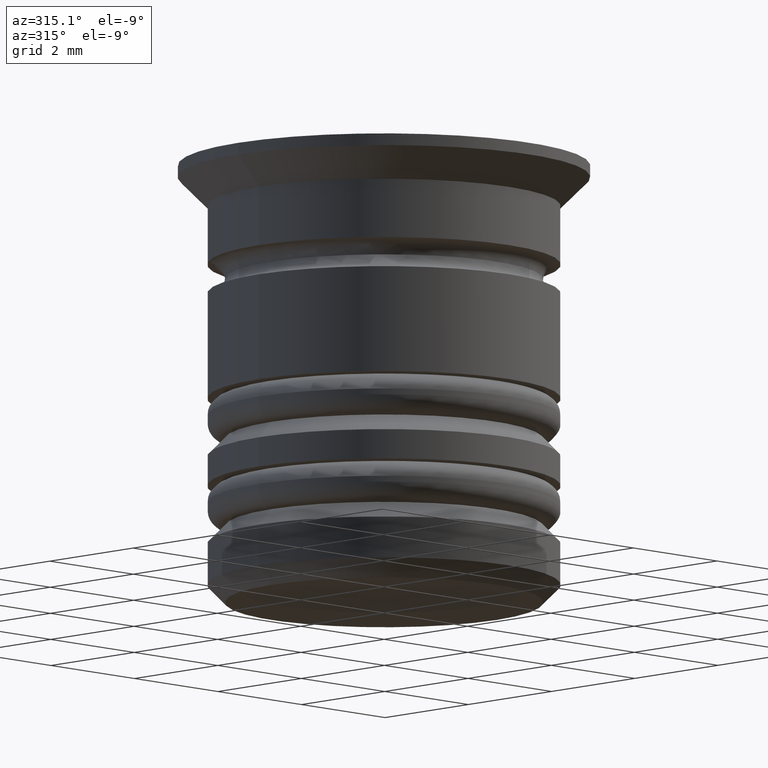
[diagram: clean part render]
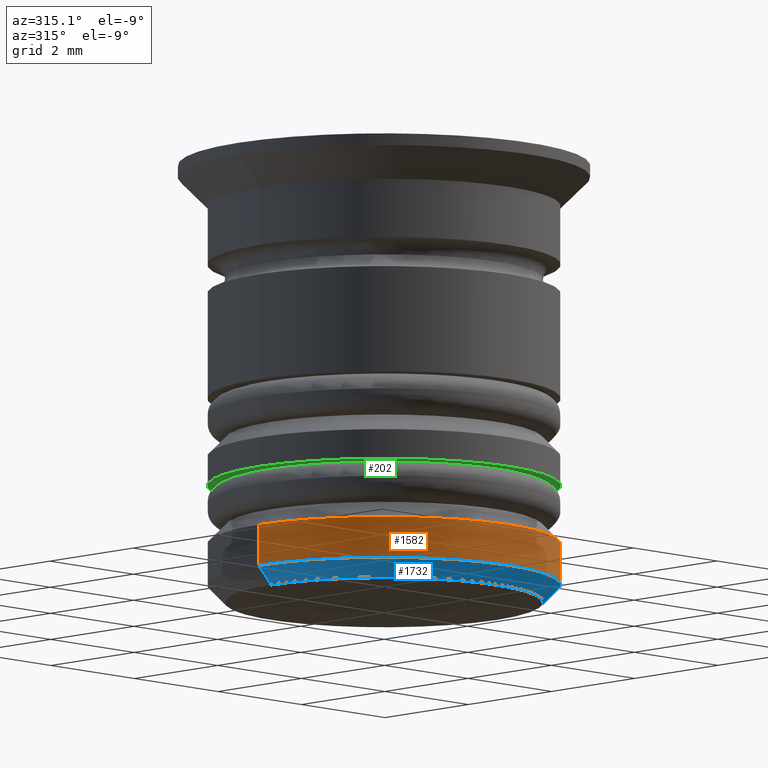
[diagram: same view with three faces highlighted in distinct colors, each labeled with its STEP entity id]
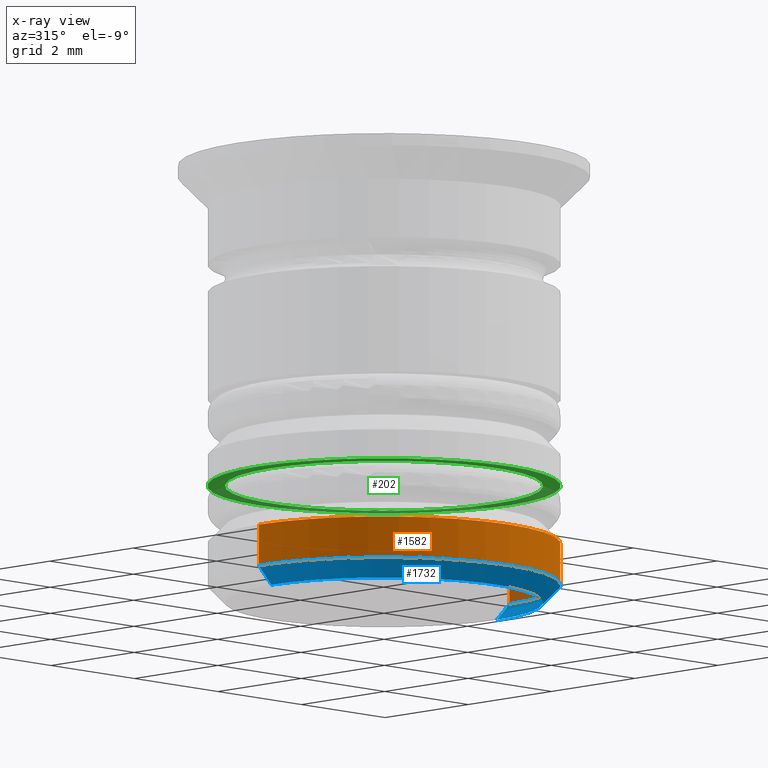
[diagram: x-ray of the same camera — body ghosted, the three highlighted faces saturated]
A machine part, auxiliary view with three faces highlighted in distinct colors.
The next image is the same camera in x-ray (body ghosted, the three faces saturated) — at least one of them is partly hidden behind the body in this view.
Their STEP definitions:

[orange] entity #1582 — the highlighted cylindrical surface (partial cylindrical patch) has radius 3 mm, axis along (-0, -0, 1).
#94 = VERTEX_POINT ( 'NONE', #185 ) ;
#110 = DIRECTION ( 'NONE',  ( -0.000000000000000000, -0.000000000000000000, 1.000000000000000000 ) ) ;
#119 = CIRCLE ( 'NONE', #1657, 3.000000000000000888 ) ;
#162 = EDGE_CURVE ( 'NONE', #653, #94, #843, .T. ) ;
#185 = CARTESIAN_POINT ( 'NONE',  ( 3.000000000000000888, 0.000000000000000000, -7.200000000000000178 ) ) ;
#319 = LINE ( 'NONE', #763, #1628 ) ;
#320 = DIRECTION ( 'NONE',  ( -1.000000000000000000, 0.000000000000000000, 0.000000000000000000 ) ) ;
#411 = DIRECTION ( 'NONE',  ( 1.000000000000000000, 0.000000000000000000, 0.000000000000000000 ) ) ;
#431 = VERTEX_POINT ( 'NONE', #1818 ) ;
#464 = DIRECTION ( 'NONE',  ( -0.000000000000000000, -0.000000000000000000, 1.000000000000000000 ) ) ;
#491 = EDGE_CURVE ( 'NONE', #94, #431, #319, .T. ) ;
#547 = ORIENTED_EDGE ( 'NONE', *, *, #1804, .F. ) ;
#595 = EDGE_LOOP ( 'NONE', ( #547, #1477, #1161, #1635 ) ) ;
#618 = DIRECTION ( 'NONE',  ( -1.000000000000000000, 0.000000000000000000, 0.000000000000000000 ) ) ;
#631 = CARTESIAN_POINT ( 'NONE',  ( 0.000000000000000000, 0.000000000000000000, -6.500000000000004441 ) ) ;
#653 = VERTEX_POINT ( 'NONE', #1637 ) ;
#758 = AXIS2_PLACEMENT_3D ( 'NONE', #1416, #1137, #411 ) ;
#763 = CARTESIAN_POINT ( 'NONE',  ( 3.000000000000000888, 0.000000000000000000, 0.000000000000000000 ) ) ;
#833 = VERTEX_POINT ( 'NONE', #897 ) ;
#843 = CIRCLE ( 'NONE', #1315, 3.000000000000000888 ) ;
#897 = CARTESIAN_POINT ( 'NONE',  ( -3.000000000000000888, 3.673940397442060854E-16, -6.500000000000004441 ) ) ;
#1026 = VECTOR ( 'NONE', #110, 1000.000000000000000 ) ;
#1044 = CARTESIAN_POINT ( 'NONE',  ( -3.000000000000000888, 3.673940397442060854E-16, 0.000000000000000000 ) ) ;
#1137 = DIRECTION ( 'NONE',  ( -0.000000000000000000, -0.000000000000000000, 1.000000000000000000 ) ) ;
#1161 = ORIENTED_EDGE ( 'NONE', *, *, #491, .T. ) ;
#1164 = CARTESIAN_POINT ( 'NONE',  ( 0.000000000000000000, 0.000000000000000000, -7.200000000000000178 ) ) ;
#1251 = FACE_OUTER_BOUND ( 'NONE', #595, .T. ) ;
#1306 = EDGE_CURVE ( 'NONE', #431, #833, #119, .T. ) ;
#1315 = AXIS2_PLACEMENT_3D ( 'NONE', #1164, #464, #618 ) ;
#1320 = DIRECTION ( 'NONE',  ( 0.000000000000000000, 0.000000000000000000, -1.000000000000000000 ) ) ;
#1329 = DIRECTION ( 'NONE',  ( -0.000000000000000000, -0.000000000000000000, 1.000000000000000000 ) ) ;
#1335 = LINE ( 'NONE', #1044, #1026 ) ;
#1416 = CARTESIAN_POINT ( 'NONE',  ( 0.000000000000000000, 0.000000000000000000, 0.000000000000000000 ) ) ;
#1477 = ORIENTED_EDGE ( 'NONE', *, *, #162, .T. ) ;
#1563 = CYLINDRICAL_SURFACE ( 'NONE', #758, 3.000000000000000888 ) ;
#1582 = ADVANCED_FACE ( 'NONE', ( #1251 ), #1563, .T. ) ;
#1628 = VECTOR ( 'NONE', #1329, 1000.000000000000000 ) ;
#1635 = ORIENTED_EDGE ( 'NONE', *, *, #1306, .T. ) ;
#1637 = CARTESIAN_POINT ( 'NONE',  ( -3.000000000000000888, 3.673940397442060854E-16, -7.200000000000000178 ) ) ;
#1657 = AXIS2_PLACEMENT_3D ( 'NONE', #631, #1320, #320 ) ;
#1804 = EDGE_CURVE ( 'NONE', #653, #833, #1335, .T. ) ;
#1818 = CARTESIAN_POINT ( 'NONE',  ( 3.000000000000000888, 0.000000000000000000, -6.500000000000004441 ) ) ;

[blue] entity #1732 — the highlighted conical surface has half-angle 45 deg.
#17 = EDGE_CURVE ( 'NONE', #144, #94, #1157, .T. ) ;
#73 = CARTESIAN_POINT ( 'NONE',  ( 2.699999999999999289, 0.000000000000000000, -7.500000000000000000 ) ) ;
#94 = VERTEX_POINT ( 'NONE', #185 ) ;
#144 = VERTEX_POINT ( 'NONE', #73 ) ;
#162 = EDGE_CURVE ( 'NONE', #653, #94, #843, .T. ) ;
#185 = CARTESIAN_POINT ( 'NONE',  ( 3.000000000000000888, 0.000000000000000000, -7.200000000000000178 ) ) ;
#192 = CARTESIAN_POINT ( 'NONE',  ( -3.000000000000000888, 3.673940397442060854E-16, -7.200000000000000178 ) ) ;
#208 = FACE_OUTER_BOUND ( 'NONE', #1589, .T. ) ;
#252 = DIRECTION ( 'NONE',  ( -0.000000000000000000, -0.000000000000000000, 1.000000000000000000 ) ) ;
#287 = DIRECTION ( 'NONE',  ( 0.000000000000000000, 0.000000000000000000, -1.000000000000000000 ) ) ;
#296 = CARTESIAN_POINT ( 'NONE',  ( 0.000000000000000000, 0.000000000000000000, -7.500000000000000000 ) ) ;
#445 = AXIS2_PLACEMENT_3D ( 'NONE', #296, #287, #850 ) ;
#464 = DIRECTION ( 'NONE',  ( -0.000000000000000000, -0.000000000000000000, 1.000000000000000000 ) ) ;
#528 = AXIS2_PLACEMENT_3D ( 'NONE', #1519, #252, #1662 ) ;
#584 = CARTESIAN_POINT ( 'NONE',  ( -2.699999999999999289, 3.490243377569956554E-16, -7.500000000000000000 ) ) ;
#618 = DIRECTION ( 'NONE',  ( -1.000000000000000000, 0.000000000000000000, 0.000000000000000000 ) ) ;
#653 = VERTEX_POINT ( 'NONE', #1637 ) ;
#703 = VECTOR ( 'NONE', #745, 1000.000000000000227 ) ;
#745 = DIRECTION ( 'NONE',  ( -0.7071067811865495711, 8.659560562354957510E-17, 0.7071067811865454633 ) ) ;
#795 = ORIENTED_EDGE ( 'NONE', *, *, #1202, .F. ) ;
#843 = CIRCLE ( 'NONE', #1315, 3.000000000000000888 ) ;
#850 = DIRECTION ( 'NONE',  ( -1.000000000000000000, 0.000000000000000000, 0.000000000000000000 ) ) ;
#907 = ORIENTED_EDGE ( 'NONE', *, *, #162, .F. ) ;
#970 = CONICAL_SURFACE ( 'NONE', #528, 3.000000000000000888, 0.7853981633974511656 ) ;
#973 = DIRECTION ( 'NONE',  ( 0.7071067811865495711, 0.000000000000000000, 0.7071067811865454633 ) ) ;
#975 = VERTEX_POINT ( 'NONE', #584 ) ;
#1109 = ORIENTED_EDGE ( 'NONE', *, *, #17, .T. ) ;
#1157 = LINE ( 'NONE', #1728, #1465 ) ;
#1164 = CARTESIAN_POINT ( 'NONE',  ( 0.000000000000000000, 0.000000000000000000, -7.200000000000000178 ) ) ;
#1202 = EDGE_CURVE ( 'NONE', #144, #975, #1717, .T. ) ;
#1285 = EDGE_CURVE ( 'NONE', #975, #653, #1736, .T. ) ;
#1315 = AXIS2_PLACEMENT_3D ( 'NONE', #1164, #464, #618 ) ;
#1465 = VECTOR ( 'NONE', #973, 1000.000000000000227 ) ;
#1519 = CARTESIAN_POINT ( 'NONE',  ( 0.000000000000000000, 0.000000000000000000, -7.200000000000000178 ) ) ;
#1525 = ORIENTED_EDGE ( 'NONE', *, *, #1285, .F. ) ;
#1589 = EDGE_LOOP ( 'NONE', ( #1525, #795, #1109, #907 ) ) ;
#1637 = CARTESIAN_POINT ( 'NONE',  ( -3.000000000000000888, 3.673940397442060854E-16, -7.200000000000000178 ) ) ;
#1662 = DIRECTION ( 'NONE',  ( 1.000000000000000000, 0.000000000000000000, 0.000000000000000000 ) ) ;
#1717 = CIRCLE ( 'NONE', #445, 2.699999999999999289 ) ;
#1728 = CARTESIAN_POINT ( 'NONE',  ( 3.000000000000000888, 0.000000000000000000, -7.200000000000000178 ) ) ;
#1732 = ADVANCED_FACE ( 'NONE', ( #208 ), #970, .T. ) ;
#1736 = LINE ( 'NONE', #192, #703 ) ;

[green] entity #202 — the highlighted planar face has unit normal (0, -0, 1).
#35 = DIRECTION ( 'NONE',  ( -0.000000000000000000, -0.000000000000000000, 1.000000000000000000 ) ) ;
#127 = PLANE ( 'NONE',  #874 ) ;
#147 = DIRECTION ( 'NONE',  ( -0.000000000000000000, -0.000000000000000000, 1.000000000000000000 ) ) ;
#202 = ADVANCED_FACE ( 'NONE', ( #1357, #930 ), #127, .F. ) ;
#247 = DIRECTION ( 'NONE',  ( 1.000000000000000000, 0.000000000000000000, 0.000000000000000000 ) ) ;
#318 = EDGE_LOOP ( 'NONE', ( #1102, #1094 ) ) ;
#349 = EDGE_CURVE ( 'NONE', #1552, #1160, #1679, .T. ) ;
#455 = CARTESIAN_POINT ( 'NONE',  ( -2.700000000000000178, 3.306546357697853733E-16, -5.500000000000000000 ) ) ;
#471 = CIRCLE ( 'NONE', #1688, 3.000000000000001776 ) ;
#601 = VERTEX_POINT ( 'NONE', #946 ) ;
#717 = CARTESIAN_POINT ( 'NONE',  ( 0.000000000000000000, 0.000000000000000000, -5.500000000000000000 ) ) ;
#808 = ORIENTED_EDGE ( 'NONE', *, *, #1611, .F. ) ;
#840 = ORIENTED_EDGE ( 'NONE', *, *, #1151, .F. ) ;
#847 = CARTESIAN_POINT ( 'NONE',  ( 0.000000000000000000, 0.000000000000000000, -5.500000000000000000 ) ) ;
#852 = CIRCLE ( 'NONE', #879, 3.000000000000001776 ) ;
#872 = DIRECTION ( 'NONE',  ( 1.000000000000000000, 0.000000000000000000, 0.000000000000000000 ) ) ;
#874 = AXIS2_PLACEMENT_3D ( 'NONE', #958, #1374, #247 ) ;
#879 = AXIS2_PLACEMENT_3D ( 'NONE', #1672, #147, #1721 ) ;
#909 = CIRCLE ( 'NONE', #1508, 2.700000000000000178 ) ;
#930 = FACE_BOUND ( 'NONE', #318, .T. ) ;
#946 = CARTESIAN_POINT ( 'NONE',  ( -3.000000000000002220, 3.673940397442061840E-16, -5.500000000000000888 ) ) ;
#958 = CARTESIAN_POINT ( 'NONE',  ( 0.000000000000000000, 2.700000000000000178, -5.500000000000000000 ) ) ;
#1003 = CARTESIAN_POINT ( 'NONE',  ( 0.000000000000000000, 0.000000000000000000, -5.500000000000000888 ) ) ;
#1094 = ORIENTED_EDGE ( 'NONE', *, *, #1554, .T. ) ;
#1102 = ORIENTED_EDGE ( 'NONE', *, *, #349, .T. ) ;
#1146 = CARTESIAN_POINT ( 'NONE',  ( 2.700000000000000178, 0.000000000000000000, -5.500000000000000000 ) ) ;
#1151 = EDGE_CURVE ( 'NONE', #601, #1558, #852, .T. ) ;
#1160 = VERTEX_POINT ( 'NONE', #455 ) ;
#1273 = DIRECTION ( 'NONE',  ( -0.000000000000000000, -0.000000000000000000, 1.000000000000000000 ) ) ;
#1357 = FACE_OUTER_BOUND ( 'NONE', #1724, .T. ) ;
#1374 = DIRECTION ( 'NONE',  ( 0.000000000000000000, -0.000000000000000000, 1.000000000000000000 ) ) ;
#1508 = AXIS2_PLACEMENT_3D ( 'NONE', #847, #1677, #1547 ) ;
#1547 = DIRECTION ( 'NONE',  ( 1.000000000000000000, 0.000000000000000000, 0.000000000000000000 ) ) ;
#1552 = VERTEX_POINT ( 'NONE', #1146 ) ;
#1554 = EDGE_CURVE ( 'NONE', #1160, #1552, #909, .T. ) ;
#1555 = CARTESIAN_POINT ( 'NONE',  ( 3.000000000000001776, 0.000000000000000000, -5.500000000000000888 ) ) ;
#1558 = VERTEX_POINT ( 'NONE', #1555 ) ;
#1597 = AXIS2_PLACEMENT_3D ( 'NONE', #717, #1273, #1720 ) ;
#1611 = EDGE_CURVE ( 'NONE', #1558, #601, #471, .T. ) ;
#1672 = CARTESIAN_POINT ( 'NONE',  ( 0.000000000000000000, 0.000000000000000000, -5.500000000000000888 ) ) ;
#1677 = DIRECTION ( 'NONE',  ( -0.000000000000000000, -0.000000000000000000, 1.000000000000000000 ) ) ;
#1679 = CIRCLE ( 'NONE', #1597, 2.700000000000000178 ) ;
#1688 = AXIS2_PLACEMENT_3D ( 'NONE', #1003, #35, #872 ) ;
#1720 = DIRECTION ( 'NONE',  ( 1.000000000000000000, 0.000000000000000000, 0.000000000000000000 ) ) ;
#1721 = DIRECTION ( 'NONE',  ( 1.000000000000000000, 0.000000000000000000, 0.000000000000000000 ) ) ;
#1724 = EDGE_LOOP ( 'NONE', ( #808, #840 ) ) ;